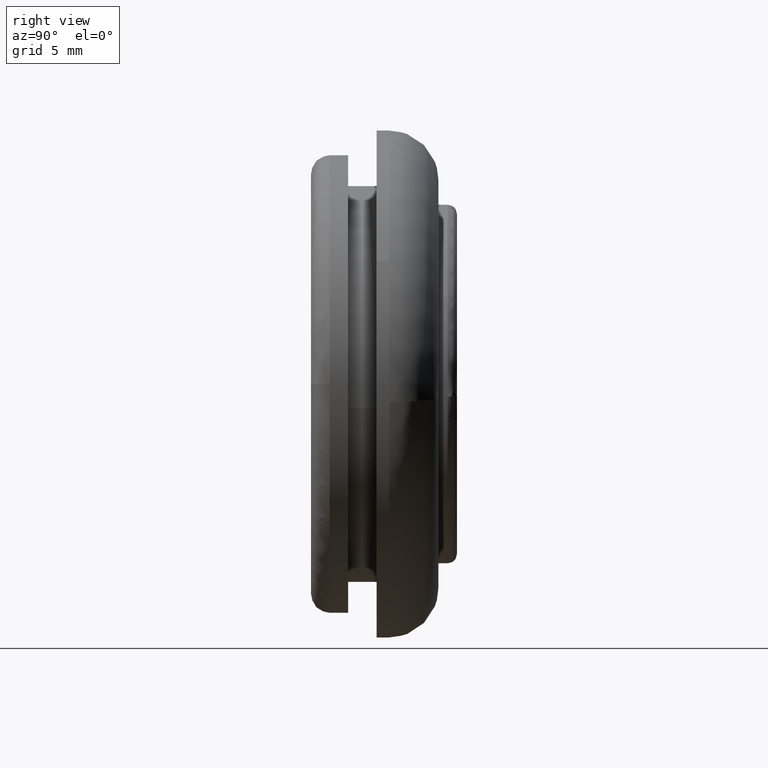
[diagram: clean part render]
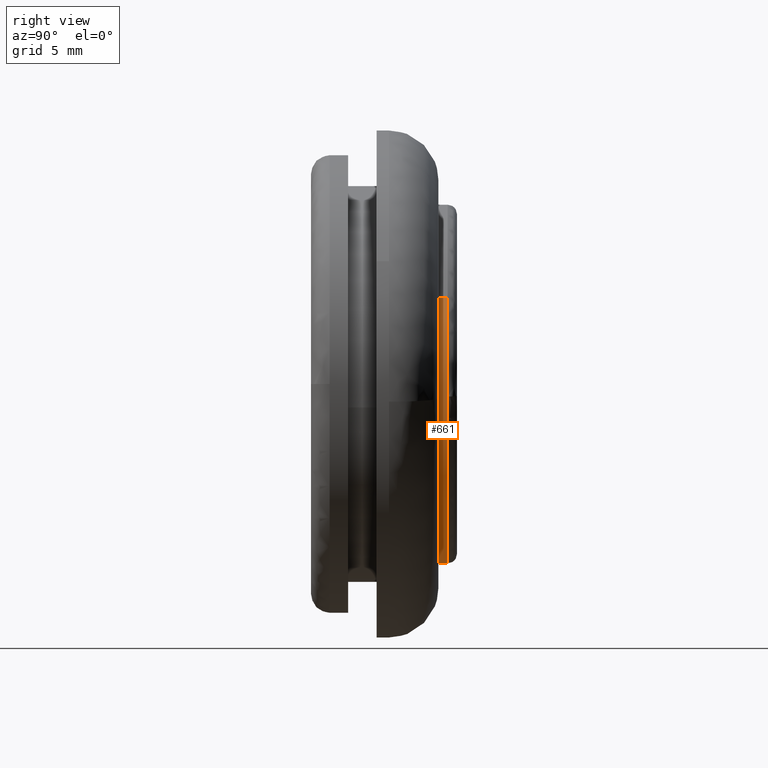
[diagram: same view with one face highlighted and labeled with its STEP entity id]
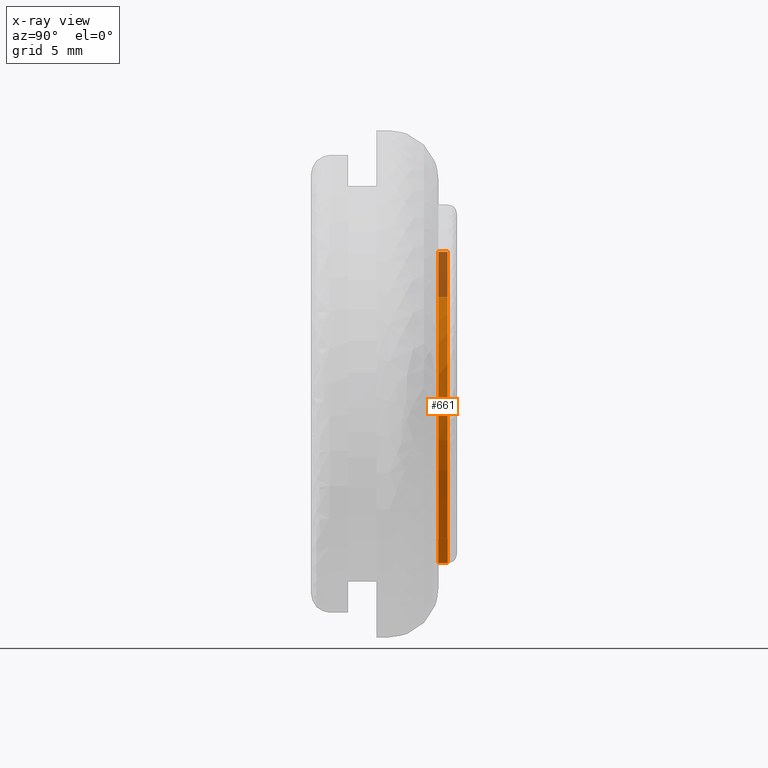
[diagram: x-ray of the same camera — body ghosted, the highlighted face saturated]
A machine part, right view. The second image highlights one B-rep face of the part: STEP entity #661.
The next image is the same camera in x-ray: the body ghosted, the highlighted face saturated — about 15% of this face is hidden behind the body in this view.
In plain terms, the highlighted face is a freeform B-spline surface patch.
Its self-contained STEP definition (entity closure, byte-faithful):
#464=CARTESIAN_POINT('',(12.686723378155641,11.050000000000081,7.021185792026794));
#465=VERTEX_POINT('',#464);
#481=CARTESIAN_POINT('',(-9.796057882035303,11.050000000057951,10.690521501396081));
#482=VERTEX_POINT('',#481);
#496=CARTESIAN_POINT('',(-9.796057829693655,10.300000000000001,10.690521549358460));
#497=VERTEX_POINT('',#496);
#498=CARTESIAN_POINT('',(-9.796057882035303,11.050000000057951,10.690521501396081));
#499=CARTESIAN_POINT('',(-9.796057829693655,10.300000000000001,10.690521549358460));
#500=QUASI_UNIFORM_CURVE('',1,(#498,#499),.UNSPECIFIED.,.F.,.U.);
#501=EDGE_CURVE('',#482,#497,#500,.T.);
#518=CARTESIAN_POINT('',(12.686726909557340,10.300000000000001,7.021179411057300));
#519=VERTEX_POINT('',#518);
#533=CARTESIAN_POINT('',(12.686723378155641,11.050000000000081,7.021185792026794));
#534=CARTESIAN_POINT('',(12.686726909557340,10.300000000000001,7.021179411057300));
#535=QUASI_UNIFORM_CURVE('',1,(#533,#534),.UNSPECIFIED.,.F.,.U.);
#536=EDGE_CURVE('',#465,#519,#535,.T.);
#541=CARTESIAN_POINT('',(-9.796058010427073,11.068750000227610,10.690521383746800));
#542=CARTESIAN_POINT('',(-20.486579394173873,11.068750000227611,0.894463373319722));
#543=CARTESIAN_POINT('',(-10.690521383746800,11.068750000227610,-9.796058010427073));
#544=CARTESIAN_POINT('',(-0.894463373319722,11.068750000227611,-20.486579394173873));
#545=CARTESIAN_POINT('',(9.796058010427073,11.068750000227610,-10.690521383746800));
#546=CARTESIAN_POINT('',(18.217942564301534,11.068750000227611,-2.973286023055807));
#547=CARTESIAN_POINT('',(12.686723197925389,11.068750000227610,7.021186117688501));
#548=CARTESIAN_POINT('',(-9.796058010427073,10.280781249994311,10.690521383746800));
#549=CARTESIAN_POINT('',(-20.486579394173873,10.280781249994309,0.894463373319722));
#550=CARTESIAN_POINT('',(-10.690521383746800,10.280781249994311,-9.796058010427073));
#551=CARTESIAN_POINT('',(-0.894463373319722,10.280781249994309,-20.486579394173873));
#552=CARTESIAN_POINT('',(9.796058010427073,10.280781249994311,-10.690521383746800));
#553=CARTESIAN_POINT('',(18.217942564301534,10.280781249994309,-2.973286023055807));
#554=CARTESIAN_POINT('',(12.686723197925389,10.280781249994309,7.021186117688501));
#562=(BOUNDED_SURFACE()B_SPLINE_SURFACE(2,1,((#541,#548),(#542,#549),(#543,#550),(#544,#551),(#545,#552),(#546,#553),(#547,#554)),.UNSPECIFIED.,.F.,.F.,.U.)B_SPLINE_SURFACE_WITH_KNOTS((3,2,2,3),(2,2),(0.0,24.024386617639500,48.048773235279008,68.229257994096187),(0.0,1.0),.UNSPECIFIED.)GEOMETRIC_REPRESENTATION_ITEM()RATIONAL_B_SPLINE_SURFACE(((1.0,1.0),(0.707106781186548,0.707106781186548),(1.0,1.0),(0.707106781186548,0.707106781186548),(1.0,1.0),(0.753969696196700,0.753969696196700),(0.921270302782944,0.921270302782944)))REPRESENTATION_ITEM('')SURFACE());
#563=CARTESIAN_POINT('',(14.464702270685629,11.050000000222060,-1.011132147853047));
#564=VERTEX_POINT('',#563);
#565=CARTESIAN_POINT('',(14.464702270685633,11.050000000222056,-1.011132147853047));
#566=CARTESIAN_POINT('',(14.500000000000000,11.050000000000006,-0.506182180192494));
#567=CARTESIAN_POINT('',(14.500000000000000,11.050000000000001,-3.061516E-016));
#568=CARTESIAN_POINT('',(14.500000000000005,11.050000000000001,3.744739193880928));
#569=CARTESIAN_POINT('',(12.686723378155648,11.050000000000079,7.021185792026794));
#577=(BOUNDED_CURVE()B_SPLINE_CURVE(2,(#565,#566,#567,#568,#569),.UNSPECIFIED.,.F.,.U.)B_SPLINE_CURVE_WITH_KNOTS((3,2,3),(0.237833686534917,0.250000000000000,0.332484281070432),.UNSPECIFIED.)CURVE()GEOMETRIC_REPRESENTATION_ITEM()RATIONAL_B_SPLINE_CURVE((0.972879876386607,0.985746277152474,1.0,0.903363653663071,0.870495143749140))REPRESENTATION_ITEM(''));
#578=EDGE_CURVE('',#564,#465,#577,.T.);
#579=ORIENTED_EDGE('',*,*,#578,.T.);
#580=ORIENTED_EDGE('',*,*,#536,.T.);
#581=CARTESIAN_POINT('',(0.0,10.300000000000001,-14.500000000000000));
#582=VERTEX_POINT('',#581);
#583=CARTESIAN_POINT('',(0.0,10.300000000000001,-14.500000000000000));
#584=CARTESIAN_POINT('',(14.500000000000000,10.300000000000001,-14.500000000000000));
#585=CARTESIAN_POINT('',(14.500000000000000,10.300000000000001,-3.061516E-016));
#586=CARTESIAN_POINT('',(14.500000000000005,10.300000000000001,3.744735502696677));
#587=CARTESIAN_POINT('',(12.686726909557338,10.300000000000001,7.021179411057300));
#595=(BOUNDED_CURVE()B_SPLINE_CURVE(2,(#583,#584,#585,#586,#587),.UNSPECIFIED.,.F.,.U.)B_SPLINE_CURVE_WITH_KNOTS((3,2,3),(0.0,0.250000000000000,0.332484207622766),.UNSPECIFIED.)CURVE()GEOMETRIC_REPRESENTATION_ITEM()RATIONAL_B_SPLINE_CURVE((1.0,0.707106781186548,1.0,0.903363739712363,0.870495202284352))REPRESENTATION_ITEM(''));
#596=EDGE_CURVE('',#582,#519,#595,.T.);
#597=ORIENTED_EDGE('',*,*,#596,.F.);
#598=CARTESIAN_POINT('',(-9.796057829693655,10.300000000000001,10.690521549358458));
#599=CARTESIAN_POINT('',(-14.500000000000004,10.300000000000001,6.380152990528510));
#600=CARTESIAN_POINT('',(-14.500000000000000,10.300000000000001,-3.061516E-016));
#601=CARTESIAN_POINT('',(-14.500000000000000,10.300000000000001,-14.500000000000000));
#602=CARTESIAN_POINT('',(0.0,10.300000000000001,-14.500000000000000));
#610=(BOUNDED_CURVE()B_SPLINE_CURVE(2,(#598,#599,#600,#601,#602),.UNSPECIFIED.,.F.,.U.)B_SPLINE_CURVE_WITH_KNOTS((3,2,3),(0.618415203979821,0.750000000000000,1.0),.UNSPECIFIED.)CURVE()GEOMETRIC_REPRESENTATION_ITEM()RATIONAL_B_SPLINE_CURVE((0.853959781467989,0.845838822186953,1.0,0.707106781186548,1.0))REPRESENTATION_ITEM(''));
#611=EDGE_CURVE('',#497,#582,#610,.T.);
#612=ORIENTED_EDGE('',*,*,#611,.F.);
#613=ORIENTED_EDGE('',*,*,#501,.F.);
#614=CARTESIAN_POINT('',(-14.498855140955319,11.050000000217780,0.182207578309288));
#615=VERTEX_POINT('',#614);
#616=CARTESIAN_POINT('',(-9.796057882035303,11.050000000057953,10.690521501396084));
#617=CARTESIAN_POINT('',(-14.420044631866851,11.050000000122392,6.453418498607384));
#618=CARTESIAN_POINT('',(-14.498855140955319,11.050000000217782,0.182207578309288));
#626=(BOUNDED_CURVE()B_SPLINE_CURVE(2,(#616,#617,#618),.UNSPECIFIED.,.F.,.U.)B_SPLINE_CURVE_WITH_KNOTS((3,3),(0.618415205458047,0.747784295921711),.UNSPECIFIED.)CURVE()GEOMETRIC_REPRESENTATION_ITEM()RATIONAL_B_SPLINE_CURVE((0.853959781285527,0.845975569493545,0.994854295643974))REPRESENTATION_ITEM(''));
#627=EDGE_CURVE('',#482,#615,#626,.T.);
#628=ORIENTED_EDGE('',*,*,#627,.T.);
#629=CARTESIAN_POINT('',(0.0,11.050000000000001,-14.500000000000000));
#630=VERTEX_POINT('',#629);
#631=CARTESIAN_POINT('',(-14.498855140955319,11.050000000217775,0.182207578309288));
#632=CARTESIAN_POINT('',(-14.500000000000002,11.050000000000006,0.091107385883081));
#633=CARTESIAN_POINT('',(-14.500000000000000,11.050000000000001,-3.061516E-016));
#634=CARTESIAN_POINT('',(-14.500000000000000,11.050000000000001,-14.500000000000000));
#635=CARTESIAN_POINT('',(0.0,11.050000000000001,-14.500000000000000));
#643=(BOUNDED_CURVE()B_SPLINE_CURVE(2,(#631,#632,#633,#634,#635),.UNSPECIFIED.,.F.,.U.)B_SPLINE_CURVE_WITH_KNOTS((3,2,3),(0.747784295921712,0.750000000000000,1.0),.UNSPECIFIED.)CURVE()GEOMETRIC_REPRESENTATION_ITEM()RATIONAL_B_SPLINE_CURVE((0.994854295643974,0.997404141202288,1.0,0.707106781186548,1.0))REPRESENTATION_ITEM(''));
#644=EDGE_CURVE('',#615,#630,#643,.T.);
#645=ORIENTED_EDGE('',*,*,#644,.T.);
#646=CARTESIAN_POINT('',(0.0,11.050000000000001,-14.500000000000000));
#647=CARTESIAN_POINT('',(13.521784285348859,11.050000000000001,-14.500000000000002));
#648=CARTESIAN_POINT('',(14.464702270685629,11.050000000222065,-1.011132147853047));
#656=(BOUNDED_CURVE()B_SPLINE_CURVE(2,(#646,#647,#648),.UNSPECIFIED.,.F.,.U.)B_SPLINE_CURVE_WITH_KNOTS((3,3),(0.0,0.237833686534917),.UNSPECIFIED.)CURVE()GEOMETRIC_REPRESENTATION_ITEM()RATIONAL_B_SPLINE_CURVE((1.0,0.721360504034074,0.972879876386607))REPRESENTATION_ITEM(''));
#657=EDGE_CURVE('',#630,#564,#656,.T.);
#658=ORIENTED_EDGE('',*,*,#657,.T.);
#659=EDGE_LOOP('',(#579,#580,#597,#612,#613,#628,#645,#658));
#660=FACE_OUTER_BOUND('',#659,.T.);
#661=ADVANCED_FACE('',(#660),#562,.T.);